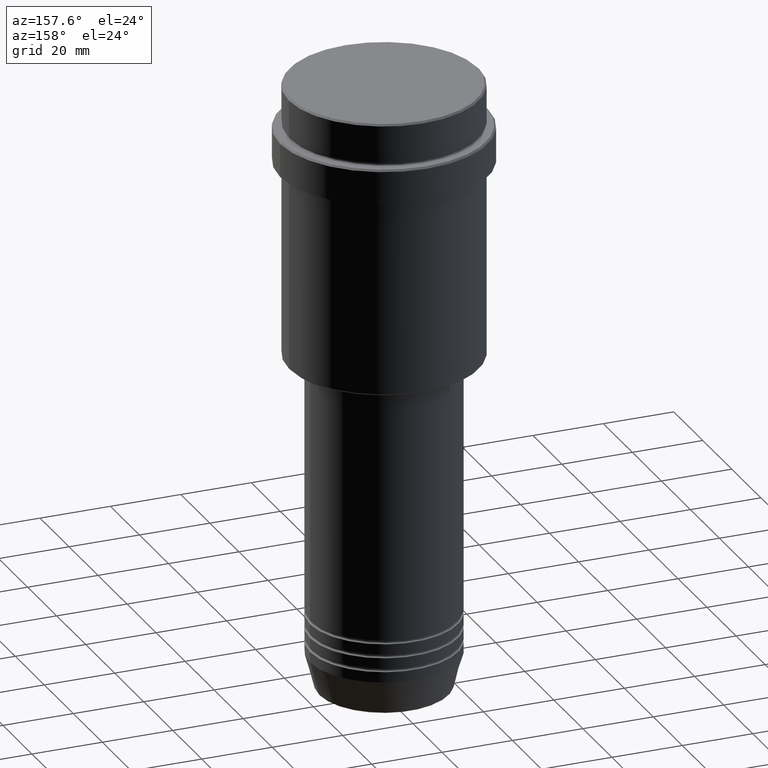
[diagram: clean part render]
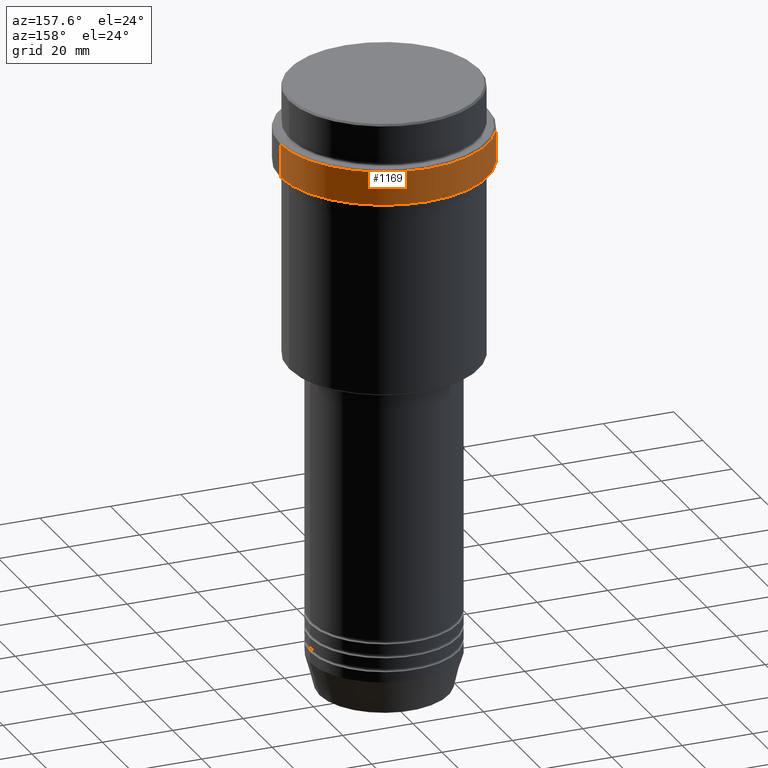
[diagram: same view with one face highlighted and labeled with its STEP entity id]
A machine part, auxiliary view. The second image highlights one B-rep face of the part: STEP entity #1169.
In plain terms, the highlighted cylindrical surface (partial cylindrical patch) has radius 29.5 mm, axis along (-0, -0, 1).
Its self-contained STEP definition (entity closure, byte-faithful):
#8 = CARTESIAN_POINT ( 'NONE',  ( -29.49999999999999645, 3.612708057484690815E-15, -21.99999999999999289 ) ) ;
#50 = VERTEX_POINT ( 'NONE', #294 ) ;
#53 = VERTEX_POINT ( 'NONE', #727 ) ;
#67 = ORIENTED_EDGE ( 'NONE', *, *, #653, .T. ) ;
#96 = CIRCLE ( 'NONE', #272, 29.50000000000000000 ) ;
#116 = FACE_OUTER_BOUND ( 'NONE', #1373, .T. ) ;
#271 = ORIENTED_EDGE ( 'NONE', *, *, #1186, .F. ) ;
#272 = AXIS2_PLACEMENT_3D ( 'NONE', #1185, #1180, #955 ) ;
#294 = CARTESIAN_POINT ( 'NONE',  ( -29.50000000000000000, 3.612708057484691604E-15, -12.49999999999999112 ) ) ;
#345 = CARTESIAN_POINT ( 'NONE',  ( 29.49999999999999645, 0.000000000000000000, -21.99999999999999289 ) ) ;
#349 = LINE ( 'NONE', #461, #522 ) ;
#440 = CARTESIAN_POINT ( 'NONE',  ( -29.50000000000000000, 3.612708057484691604E-15, 0.000000000000000000 ) ) ;
#446 = DIRECTION ( 'NONE',  ( -0.000000000000000000, -0.000000000000000000, 1.000000000000000000 ) ) ;
#461 = CARTESIAN_POINT ( 'NONE',  ( 29.50000000000000000, 0.000000000000000000, 0.000000000000000000 ) ) ;
#500 = AXIS2_PLACEMENT_3D ( 'NONE', #1316, #1223, #542 ) ;
#522 = VECTOR ( 'NONE', #1116, 1000.000000000000000 ) ;
#542 = DIRECTION ( 'NONE',  ( 1.000000000000000000, 0.000000000000000000, 0.000000000000000000 ) ) ;
#592 = CARTESIAN_POINT ( 'NONE',  ( 0.000000000000000000, 0.000000000000000000, -21.99999999999999289 ) ) ;
#649 = VERTEX_POINT ( 'NONE', #8 ) ;
#653 = EDGE_CURVE ( 'NONE', #649, #50, #776, .T. ) ;
#660 = VECTOR ( 'NONE', #446, 1000.000000000000000 ) ;
#698 = DIRECTION ( 'NONE',  ( -0.000000000000000000, -0.000000000000000000, 1.000000000000000000 ) ) ;
#727 = CARTESIAN_POINT ( 'NONE',  ( 29.50000000000000000, 0.000000000000000000, -12.49999999999999112 ) ) ;
#728 = AXIS2_PLACEMENT_3D ( 'NONE', #592, #698, #1126 ) ;
#776 = LINE ( 'NONE', #440, #660 ) ;
#782 = ORIENTED_EDGE ( 'NONE', *, *, #1272, .T. ) ;
#838 = CIRCLE ( 'NONE', #728, 29.49999999999999645 ) ;
#945 = EDGE_CURVE ( 'NONE', #50, #53, #96, .T. ) ;
#955 = DIRECTION ( 'NONE',  ( 1.000000000000000000, 0.000000000000000000, 0.000000000000000000 ) ) ;
#1106 = VERTEX_POINT ( 'NONE', #345 ) ;
#1116 = DIRECTION ( 'NONE',  ( -0.000000000000000000, -0.000000000000000000, 1.000000000000000000 ) ) ;
#1126 = DIRECTION ( 'NONE',  ( 1.000000000000000000, 0.000000000000000000, 0.000000000000000000 ) ) ;
#1145 = ORIENTED_EDGE ( 'NONE', *, *, #945, .T. ) ;
#1169 = ADVANCED_FACE ( 'NONE', ( #116 ), #1228, .T. ) ;
#1180 = DIRECTION ( 'NONE',  ( 0.000000000000000000, 0.000000000000000000, -1.000000000000000000 ) ) ;
#1185 = CARTESIAN_POINT ( 'NONE',  ( 0.000000000000000000, 0.000000000000000000, -12.49999999999999112 ) ) ;
#1186 = EDGE_CURVE ( 'NONE', #1106, #53, #349, .T. ) ;
#1223 = DIRECTION ( 'NONE',  ( -0.000000000000000000, -0.000000000000000000, 1.000000000000000000 ) ) ;
#1228 = CYLINDRICAL_SURFACE ( 'NONE', #500, 29.50000000000000000 ) ;
#1272 = EDGE_CURVE ( 'NONE', #1106, #649, #838, .T. ) ;
#1316 = CARTESIAN_POINT ( 'NONE',  ( 0.000000000000000000, 0.000000000000000000, 0.000000000000000000 ) ) ;
#1373 = EDGE_LOOP ( 'NONE', ( #782, #67, #1145, #271 ) ) ;